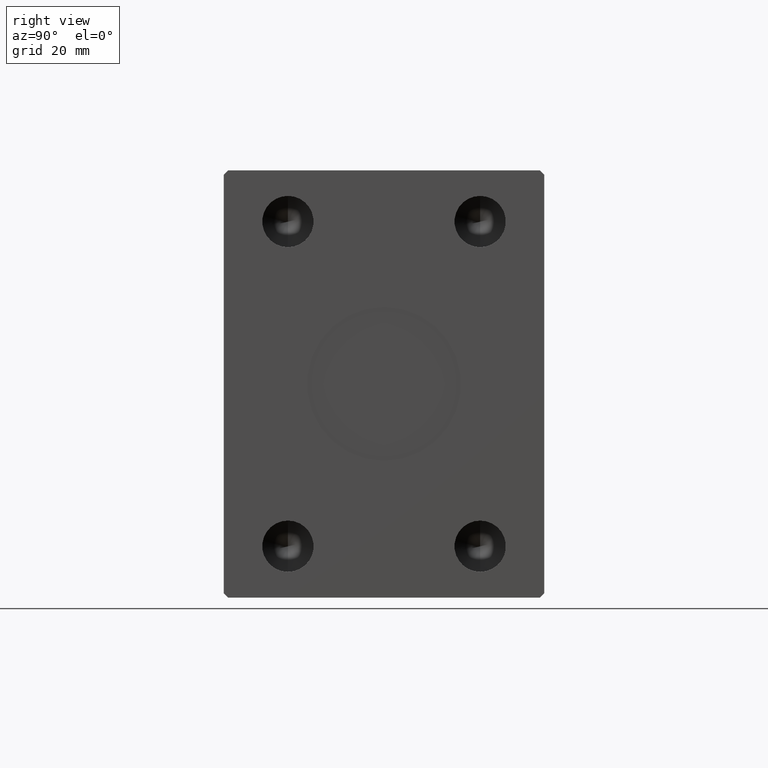
[diagram: clean part render]
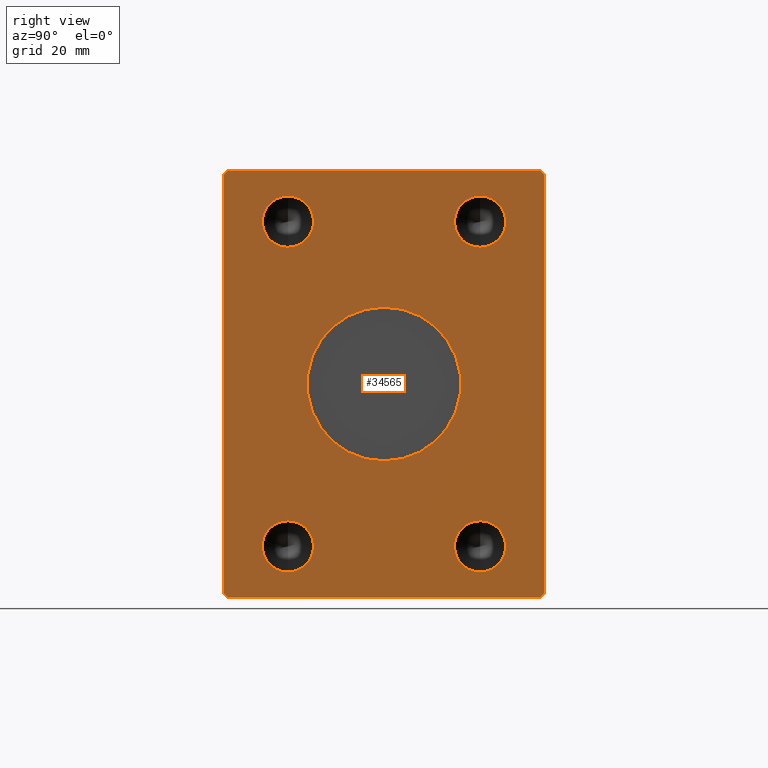
[diagram: same view with one face highlighted and labeled with its STEP entity id]
A machine part, right view. The second image highlights one B-rep face of the part: STEP entity #34565.
In plain terms, the highlighted planar face has unit normal (1, 0, 0).
Its self-contained STEP definition (entity closure, byte-faithful):
#479 = AXIS2_PLACEMENT_3D ( 'NONE', #7081, #41546, #37995 ) ;
#509 = AXIS2_PLACEMENT_3D ( 'NONE', #16556, #30110, #29893 ) ;
#596 = DIRECTION ( 'NONE',  ( 0.000000000000000000, 0.000000000000000000, -1.000000000000000000 ) ) ;
#804 = VERTEX_POINT ( 'NONE', #15216 ) ;
#1167 = VERTEX_POINT ( 'NONE', #1585 ) ;
#1321 = FACE_BOUND ( 'NONE', #33746, .T. ) ;
#1450 = EDGE_CURVE ( 'NONE', #12466, #25312, #39126, .T. ) ;
#1498 = AXIS2_PLACEMENT_3D ( 'NONE', #38689, #17582, #24909 ) ;
#1560 = ORIENTED_EDGE ( 'NONE', *, *, #10743, .F. ) ;
#1585 = CARTESIAN_POINT ( 'NONE',  ( 107.0000000000000000, -22.50000000000000000, 44.00000000000000000 ) ) ;
#1733 = CARTESIAN_POINT ( 'NONE',  ( 107.0000000000000000, 36.50000000000000711, 50.00000000000000000 ) ) ;
#2037 = VECTOR ( 'NONE', #34035, 1000.000000000000000 ) ;
#2498 = ORIENTED_EDGE ( 'NONE', *, *, #21680, .F. ) ;
#2538 = DIRECTION ( 'NONE',  ( 1.000000000000000000, -0.000000000000000000, -0.000000000000000000 ) ) ;
#3512 = CARTESIAN_POINT ( 'NONE',  ( 107.0000000000000000, 0.000000000000000000, 0.000000000000000000 ) ) ;
#3544 = CARTESIAN_POINT ( 'NONE',  ( 107.0000000000000000, -36.50000000000000711, -50.00000000000000000 ) ) ;
#3567 = EDGE_LOOP ( 'NONE', ( #22045, #43925 ) ) ;
#3729 = DIRECTION ( 'NONE',  ( 1.000000000000000000, 0.000000000000000000, 0.000000000000000000 ) ) ;
#3993 = CARTESIAN_POINT ( 'NONE',  ( 107.0000000000000000, 36.50000000000000711, 50.00000000000000000 ) ) ;
#4006 = PLANE ( 'NONE',  #1498 ) ;
#4380 = LINE ( 'NONE', #27964, #31503 ) ;
#4495 = CARTESIAN_POINT ( 'NONE',  ( 107.0000000000000000, 37.50000000000000711, 49.00000000000000000 ) ) ;
#4599 = DIRECTION ( 'NONE',  ( 1.000000000000000000, -0.000000000000000000, -0.000000000000000000 ) ) ;
#5232 = EDGE_LOOP ( 'NONE', ( #36591, #15312 ) ) ;
#5242 = CARTESIAN_POINT ( 'NONE',  ( 107.0000000000000000, 22.50000000000000000, 32.00000000000000000 ) ) ;
#5753 = AXIS2_PLACEMENT_3D ( 'NONE', #3512, #3729, #596 ) ;
#5952 = CIRCLE ( 'NONE', #35067, 5.999999999999998224 ) ;
#5956 = CARTESIAN_POINT ( 'NONE',  ( 107.0000000000000000, -37.50000000000001421, 48.99999999999998579 ) ) ;
#5957 = VERTEX_POINT ( 'NONE', #1733 ) ;
#6081 = EDGE_CURVE ( 'NONE', #29026, #21862, #29975, .T. ) ;
#6541 = CARTESIAN_POINT ( 'NONE',  ( 107.0000000000000000, 2.204364238465235428E-15, 18.00000000000000000 ) ) ;
#6826 = VERTEX_POINT ( 'NONE', #17376 ) ;
#7081 = CARTESIAN_POINT ( 'NONE',  ( 107.0000000000000000, 22.50000000000000000, -38.00000000000000000 ) ) ;
#7124 = CARTESIAN_POINT ( 'NONE',  ( 107.0000000000000000, 22.50000000000000000, -38.00000000000000000 ) ) ;
#7341 = FACE_OUTER_BOUND ( 'NONE', #43419, .T. ) ;
#7824 = EDGE_CURVE ( 'NONE', #9028, #32918, #25967, .T. ) ;
#7879 = DIRECTION ( 'NONE',  ( 1.000000000000000000, -0.000000000000000000, -0.000000000000000000 ) ) ;
#8283 = CIRCLE ( 'NONE', #479, 5.999999999999998224 ) ;
#8313 = CIRCLE ( 'NONE', #19696, 5.999999999999998224 ) ;
#8641 = VERTEX_POINT ( 'NONE', #33752 ) ;
#8793 = VERTEX_POINT ( 'NONE', #28170 ) ;
#8982 = ORIENTED_EDGE ( 'NONE', *, *, #11962, .F. ) ;
#9028 = VERTEX_POINT ( 'NONE', #15710 ) ;
#9830 = ORIENTED_EDGE ( 'NONE', *, *, #6081, .T. ) ;
#10436 = LINE ( 'NONE', #3544, #19395 ) ;
#10743 = EDGE_CURVE ( 'NONE', #6826, #19215, #31693, .T. ) ;
#10903 = FACE_BOUND ( 'NONE', #42052, .T. ) ;
#10955 = EDGE_CURVE ( 'NONE', #19215, #6826, #11818, .T. ) ;
#11020 = DIRECTION ( 'NONE',  ( 0.000000000000000000, 0.000000000000000000, 1.000000000000000000 ) ) ;
#11198 = VERTEX_POINT ( 'NONE', #4495 ) ;
#11233 = LINE ( 'NONE', #30829, #20718 ) ;
#11606 = CIRCLE ( 'NONE', #36466, 5.999999999999998224 ) ;
#11662 = DIRECTION ( 'NONE',  ( 1.000000000000000000, -0.000000000000000000, -0.000000000000000000 ) ) ;
#11703 = CARTESIAN_POINT ( 'NONE',  ( 107.0000000000000000, -22.50000000000000000, -44.00000000000000711 ) ) ;
#11818 = CIRCLE ( 'NONE', #36685, 5.999999999999998224 ) ;
#11962 = EDGE_CURVE ( 'NONE', #26134, #43432, #8283, .T. ) ;
#12466 = VERTEX_POINT ( 'NONE', #6541 ) ;
#12750 = CIRCLE ( 'NONE', #34045, 5.999999999999998224 ) ;
#13791 = LINE ( 'NONE', #3993, #2037 ) ;
#13861 = VECTOR ( 'NONE', #19746, 1000.000000000000000 ) ;
#14044 = ORIENTED_EDGE ( 'NONE', *, *, #33719, .T. ) ;
#14238 = FACE_BOUND ( 'NONE', #5232, .T. ) ;
#14584 = EDGE_CURVE ( 'NONE', #21862, #17846, #43361, .T. ) ;
#15216 = CARTESIAN_POINT ( 'NONE',  ( 107.0000000000000000, 36.50000000000000711, -50.00000000000000000 ) ) ;
#15312 = ORIENTED_EDGE ( 'NONE', *, *, #7824, .F. ) ;
#15558 = CARTESIAN_POINT ( 'NONE',  ( 107.0000000000000000, 36.50000000000000711, -50.00000000000000000 ) ) ;
#15710 = CARTESIAN_POINT ( 'NONE',  ( 107.0000000000000000, 22.50000000000000000, 44.00000000000000000 ) ) ;
#16556 = CARTESIAN_POINT ( 'NONE',  ( 107.0000000000000000, 0.000000000000000000, 0.000000000000000000 ) ) ;
#16565 = CARTESIAN_POINT ( 'NONE',  ( 107.0000000000000000, 22.50000000000000000, -32.00000000000000000 ) ) ;
#16904 = CARTESIAN_POINT ( 'NONE',  ( 107.0000000000000000, 22.50000000000000000, 38.00000000000000000 ) ) ;
#17376 = CARTESIAN_POINT ( 'NONE',  ( 107.0000000000000000, -22.50000000000000000, -32.00000000000000711 ) ) ;
#17582 = DIRECTION ( 'NONE',  ( 1.000000000000000000, 0.000000000000000000, 0.000000000000000000 ) ) ;
#17797 = FACE_BOUND ( 'NONE', #18978, .T. ) ;
#17846 = VERTEX_POINT ( 'NONE', #42380 ) ;
#18166 = DIRECTION ( 'NONE',  ( 0.000000000000000000, 0.000000000000000000, -1.000000000000000000 ) ) ;
#18334 = CARTESIAN_POINT ( 'NONE',  ( 107.0000000000000000, -22.50000000000000000, 38.00000000000000000 ) ) ;
#18779 = CARTESIAN_POINT ( 'NONE',  ( 107.0000000000000000, -22.50000000000000000, -38.00000000000000711 ) ) ;
#18978 = EDGE_LOOP ( 'NONE', ( #32866, #2498 ) ) ;
#19016 = ORIENTED_EDGE ( 'NONE', *, *, #27121, .T. ) ;
#19174 = CARTESIAN_POINT ( 'NONE',  ( 107.0000000000000000, -36.50000000000001421, 49.99999999999998579 ) ) ;
#19215 = VERTEX_POINT ( 'NONE', #11703 ) ;
#19395 = VECTOR ( 'NONE', #41345, 1000.000000000000000 ) ;
#19510 = EDGE_CURVE ( 'NONE', #5957, #8793, #13791, .T. ) ;
#19696 = AXIS2_PLACEMENT_3D ( 'NONE', #18334, #11662, #34804 ) ;
#19727 = VECTOR ( 'NONE', #32520, 1000.000000000000114 ) ;
#19746 = DIRECTION ( 'NONE',  ( 0.000000000000000000, 0.000000000000000000, -1.000000000000000000 ) ) ;
#20694 = DIRECTION ( 'NONE',  ( 1.000000000000000000, -0.000000000000000000, -0.000000000000000000 ) ) ;
#20718 = VECTOR ( 'NONE', #11020, 1000.000000000000000 ) ;
#20945 = VERTEX_POINT ( 'NONE', #30108 ) ;
#21354 = FACE_BOUND ( 'NONE', #3567, .T. ) ;
#21680 = EDGE_CURVE ( 'NONE', #1167, #20945, #12750, .T. ) ;
#21862 = VERTEX_POINT ( 'NONE', #35405 ) ;
#22004 = LINE ( 'NONE', #15558, #39107 ) ;
#22045 = ORIENTED_EDGE ( 'NONE', *, *, #25980, .F. ) ;
#22982 = ORIENTED_EDGE ( 'NONE', *, *, #19510, .T. ) ;
#23827 = AXIS2_PLACEMENT_3D ( 'NONE', #16904, #33579, #37141 ) ;
#24909 = DIRECTION ( 'NONE',  ( 0.000000000000000000, 0.000000000000000000, -1.000000000000000000 ) ) ;
#25312 = VERTEX_POINT ( 'NONE', #28529 ) ;
#25954 = EDGE_CURVE ( 'NONE', #20945, #1167, #8313, .T. ) ;
#25967 = CIRCLE ( 'NONE', #23827, 5.999999999999998224 ) ;
#25980 = EDGE_CURVE ( 'NONE', #25312, #12466, #27503, .T. ) ;
#26025 = AXIS2_PLACEMENT_3D ( 'NONE', #35510, #4599, #18166 ) ;
#26124 = DIRECTION ( 'NONE',  ( 0.000000000000000000, 0.000000000000000000, -1.000000000000000000 ) ) ;
#26134 = VERTEX_POINT ( 'NONE', #34910 ) ;
#26465 = CARTESIAN_POINT ( 'NONE',  ( 107.0000000000000000, -37.50000000000001421, -49.00000000000000000 ) ) ;
#27121 = EDGE_CURVE ( 'NONE', #8793, #29026, #36297, .T. ) ;
#27126 = DIRECTION ( 'NONE',  ( 0.000000000000000000, 0.7071067811865500152, -0.7071067811865451302 ) ) ;
#27503 = CIRCLE ( 'NONE', #509, 18.00000000000000000 ) ;
#27964 = CARTESIAN_POINT ( 'NONE',  ( 107.0000000000000000, 37.50000000000000711, 49.00000000000000000 ) ) ;
#28170 = CARTESIAN_POINT ( 'NONE',  ( 107.0000000000000000, -36.50000000000001421, 49.99999999999998579 ) ) ;
#28529 = CARTESIAN_POINT ( 'NONE',  ( 107.0000000000000000, 0.000000000000000000, -18.00000000000000000 ) ) ;
#28739 = DIRECTION ( 'NONE',  ( 1.000000000000000000, -0.000000000000000000, -0.000000000000000000 ) ) ;
#28954 = CARTESIAN_POINT ( 'NONE',  ( 107.0000000000000000, 22.50000000000000000, 38.00000000000000000 ) ) ;
#29026 = VERTEX_POINT ( 'NONE', #35219 ) ;
#29840 = EDGE_CURVE ( 'NONE', #11198, #5957, #4380, .T. ) ;
#29893 = DIRECTION ( 'NONE',  ( 0.000000000000000000, 0.000000000000000000, -1.000000000000000000 ) ) ;
#29975 = LINE ( 'NONE', #5956, #13861 ) ;
#30108 = CARTESIAN_POINT ( 'NONE',  ( 107.0000000000000000, -22.50000000000000000, 32.00000000000000000 ) ) ;
#30110 = DIRECTION ( 'NONE',  ( 1.000000000000000000, 0.000000000000000000, 0.000000000000000000 ) ) ;
#30829 = CARTESIAN_POINT ( 'NONE',  ( 107.0000000000000000, 37.50000000000000711, -49.00000000000000000 ) ) ;
#30965 = ORIENTED_EDGE ( 'NONE', *, *, #14584, .T. ) ;
#31503 = VECTOR ( 'NONE', #34623, 1000.000000000000114 ) ;
#31693 = CIRCLE ( 'NONE', #26025, 5.999999999999998224 ) ;
#32116 = DIRECTION ( 'NONE',  ( 0.000000000000000000, 0.000000000000000000, -1.000000000000000000 ) ) ;
#32520 = DIRECTION ( 'NONE',  ( 0.000000000000000000, -0.7071067811865474617, -0.7071067811865474617 ) ) ;
#32531 = ORIENTED_EDGE ( 'NONE', *, *, #35246, .T. ) ;
#32866 = ORIENTED_EDGE ( 'NONE', *, *, #25954, .F. ) ;
#32918 = VERTEX_POINT ( 'NONE', #5242 ) ;
#33579 = DIRECTION ( 'NONE',  ( 1.000000000000000000, -0.000000000000000000, -0.000000000000000000 ) ) ;
#33719 = EDGE_CURVE ( 'NONE', #804, #8641, #22004, .T. ) ;
#33746 = EDGE_LOOP ( 'NONE', ( #36205, #1560 ) ) ;
#33752 = CARTESIAN_POINT ( 'NONE',  ( 107.0000000000000000, 37.50000000000000711, -49.00000000000000000 ) ) ;
#34035 = DIRECTION ( 'NONE',  ( 0.000000000000000000, -1.000000000000000000, -1.901066822988281457E-16 ) ) ;
#34045 = AXIS2_PLACEMENT_3D ( 'NONE', #43456, #2538, #26124 ) ;
#34259 = DIRECTION ( 'NONE',  ( 0.000000000000000000, 0.000000000000000000, -1.000000000000000000 ) ) ;
#34565 = ADVANCED_FACE ( 'NONE', ( #21354, #14238, #1321, #10903, #17797, #7341 ), #4006, .T. ) ;
#34623 = DIRECTION ( 'NONE',  ( 0.000000000000000000, -0.7071067811865474617, 0.7071067811865474617 ) ) ;
#34804 = DIRECTION ( 'NONE',  ( 0.000000000000000000, 0.000000000000000000, -1.000000000000000000 ) ) ;
#34910 = CARTESIAN_POINT ( 'NONE',  ( 107.0000000000000000, 22.50000000000000000, -44.00000000000000000 ) ) ;
#35067 = AXIS2_PLACEMENT_3D ( 'NONE', #28954, #28739, #42525 ) ;
#35202 = ORIENTED_EDGE ( 'NONE', *, *, #39256, .T. ) ;
#35219 = CARTESIAN_POINT ( 'NONE',  ( 107.0000000000000000, -37.50000000000001421, 48.99999999999998579 ) ) ;
#35246 = EDGE_CURVE ( 'NONE', #8641, #11198, #11233, .T. ) ;
#35405 = CARTESIAN_POINT ( 'NONE',  ( 107.0000000000000000, -37.50000000000001421, -49.00000000000000000 ) ) ;
#35510 = CARTESIAN_POINT ( 'NONE',  ( 107.0000000000000000, -22.50000000000000000, -38.00000000000000711 ) ) ;
#35570 = DIRECTION ( 'NONE',  ( 0.000000000000000000, 0.7071067811865474617, 0.7071067811865474617 ) ) ;
#36205 = ORIENTED_EDGE ( 'NONE', *, *, #10955, .F. ) ;
#36297 = LINE ( 'NONE', #19174, #19727 ) ;
#36466 = AXIS2_PLACEMENT_3D ( 'NONE', #7124, #20694, #34259 ) ;
#36591 = ORIENTED_EDGE ( 'NONE', *, *, #42875, .F. ) ;
#36685 = AXIS2_PLACEMENT_3D ( 'NONE', #18779, #7879, #32116 ) ;
#37141 = DIRECTION ( 'NONE',  ( 0.000000000000000000, 0.000000000000000000, -1.000000000000000000 ) ) ;
#37995 = DIRECTION ( 'NONE',  ( 0.000000000000000000, 0.000000000000000000, -1.000000000000000000 ) ) ;
#38234 = ORIENTED_EDGE ( 'NONE', *, *, #41559, .F. ) ;
#38238 = VECTOR ( 'NONE', #27126, 1000.000000000000114 ) ;
#38689 = CARTESIAN_POINT ( 'NONE',  ( 107.0000000000000000, 0.000000000000000000, 0.000000000000000000 ) ) ;
#39107 = VECTOR ( 'NONE', #35570, 1000.000000000000114 ) ;
#39126 = CIRCLE ( 'NONE', #5753, 18.00000000000000000 ) ;
#39256 = EDGE_CURVE ( 'NONE', #17846, #804, #10436, .T. ) ;
#41300 = ORIENTED_EDGE ( 'NONE', *, *, #29840, .T. ) ;
#41345 = DIRECTION ( 'NONE',  ( 0.000000000000000000, 1.000000000000000000, 0.000000000000000000 ) ) ;
#41546 = DIRECTION ( 'NONE',  ( 1.000000000000000000, -0.000000000000000000, -0.000000000000000000 ) ) ;
#41559 = EDGE_CURVE ( 'NONE', #43432, #26134, #11606, .T. ) ;
#42052 = EDGE_LOOP ( 'NONE', ( #8982, #38234 ) ) ;
#42380 = CARTESIAN_POINT ( 'NONE',  ( 107.0000000000000000, -36.50000000000000711, -50.00000000000000000 ) ) ;
#42525 = DIRECTION ( 'NONE',  ( 0.000000000000000000, 0.000000000000000000, -1.000000000000000000 ) ) ;
#42875 = EDGE_CURVE ( 'NONE', #32918, #9028, #5952, .T. ) ;
#43361 = LINE ( 'NONE', #26465, #38238 ) ;
#43419 = EDGE_LOOP ( 'NONE', ( #41300, #22982, #19016, #9830, #30965, #35202, #14044, #32531 ) ) ;
#43432 = VERTEX_POINT ( 'NONE', #16565 ) ;
#43456 = CARTESIAN_POINT ( 'NONE',  ( 107.0000000000000000, -22.50000000000000000, 38.00000000000000000 ) ) ;
#43925 = ORIENTED_EDGE ( 'NONE', *, *, #1450, .F. ) ;